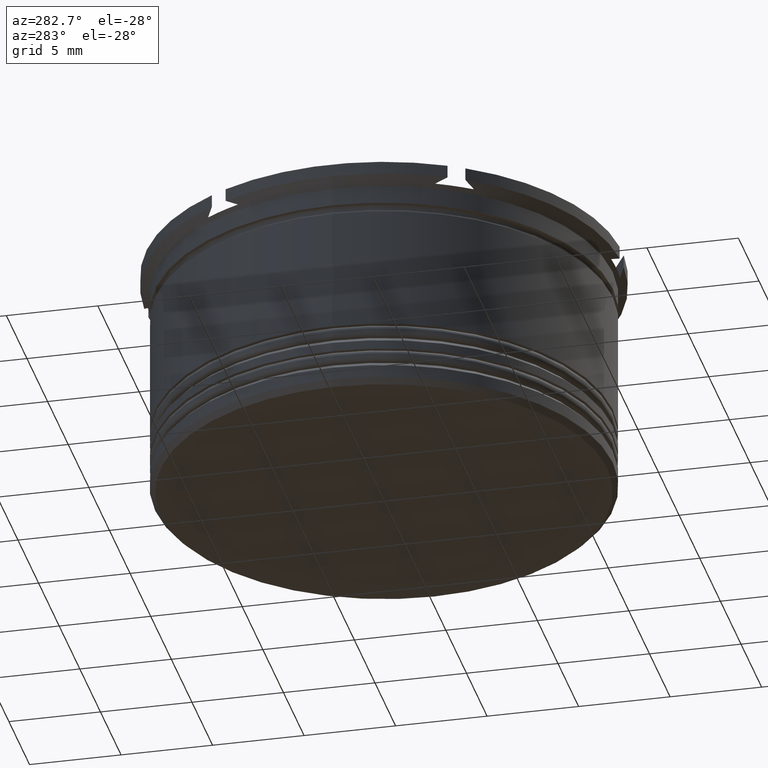
[diagram: clean part render]
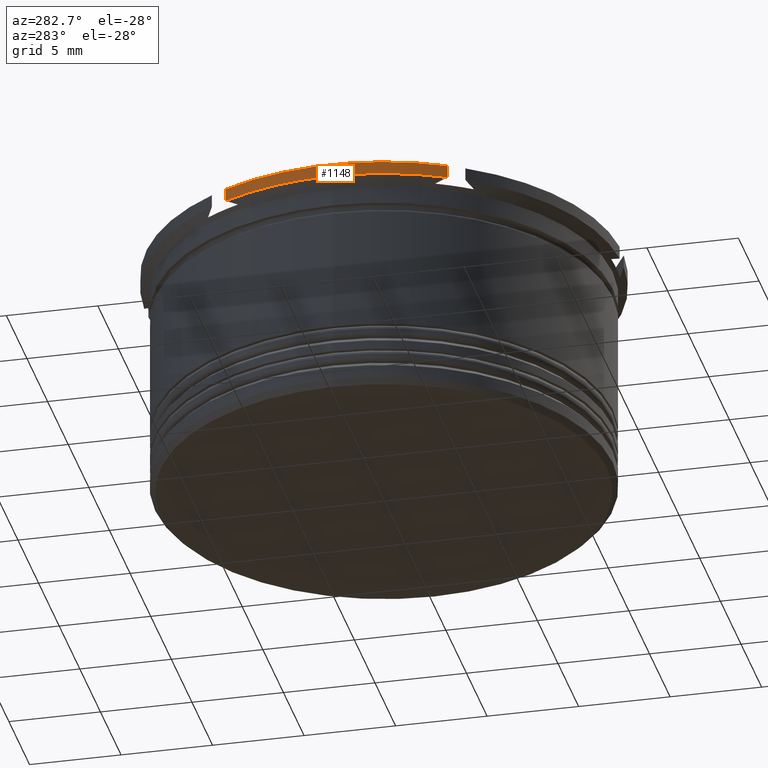
[diagram: same view with one face highlighted and labeled with its STEP entity id]
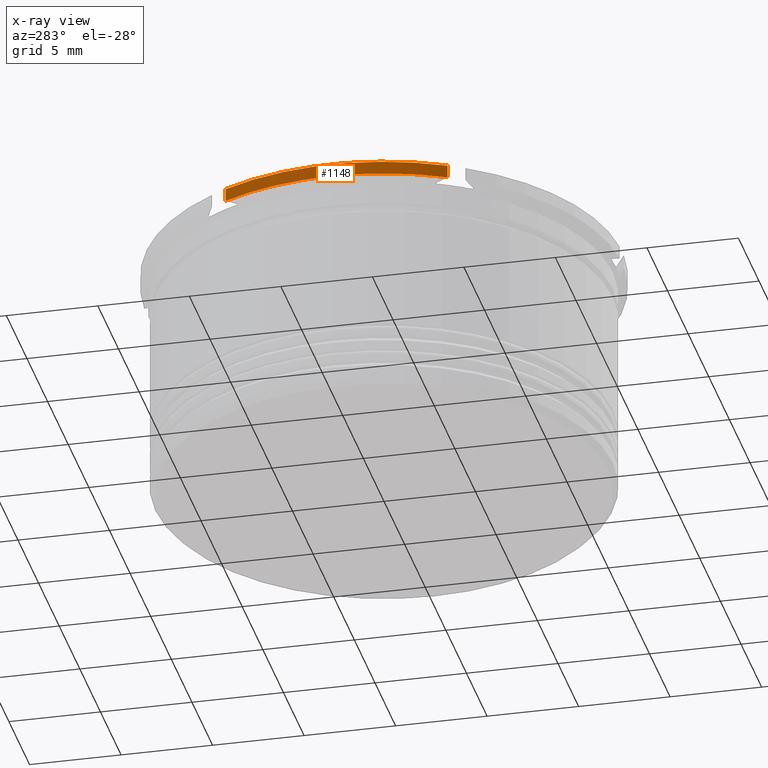
[diagram: x-ray of the same camera — body ghosted, the highlighted face saturated]
A machine part, auxiliary view. The second image highlights one B-rep face of the part: STEP entity #1148.
The next image is the same camera in x-ray: the body ghosted, the highlighted face saturated — about 0% of this face is hidden behind the body in this view.
In plain terms, the highlighted cylindrical surface (partial cylindrical patch) has radius 13 mm, axis along (-0, -0, 1).
Its self-contained STEP definition (entity closure, byte-faithful):
#3 = LINE ( 'NONE', #1488, #1124 ) ;
#55 = CARTESIAN_POINT ( 'NONE',  ( 0.000000000000000000, 0.000000000000000000, 0.000000000000000000 ) ) ;
#118 = CARTESIAN_POINT ( 'NONE',  ( -11.50000000000000000, -6.062177826491065957, 0.000000000000000000 ) ) ;
#148 = VERTEX_POINT ( 'NONE', #282 ) ;
#153 = EDGE_CURVE ( 'NONE', #268, #606, #272, .T. ) ;
#244 = ORIENTED_EDGE ( 'NONE', *, *, #1650, .F. ) ;
#268 = VERTEX_POINT ( 'NONE', #1386 ) ;
#271 = ORIENTED_EDGE ( 'NONE', *, *, #1122, .F. ) ;
#272 = LINE ( 'NONE', #118, #1339 ) ;
#282 = CARTESIAN_POINT ( 'NONE',  ( -12.99999999999999822, 1.592040838891558898E-15, -0.7000000000000018430 ) ) ;
#352 = VERTEX_POINT ( 'NONE', #2134 ) ;
#456 = CIRCLE ( 'NONE', #801, 12.99999999999999822 ) ;
#581 = CIRCLE ( 'NONE', #1277, 12.99999999999999822 ) ;
#606 = VERTEX_POINT ( 'NONE', #1544 ) ;
#689 = VERTEX_POINT ( 'NONE', #1937 ) ;
#692 = CARTESIAN_POINT ( 'NONE',  ( 0.000000000000000000, 0.000000000000000000, 0.000000000000000000 ) ) ;
#801 = AXIS2_PLACEMENT_3D ( 'NONE', #692, #1806, #1434 ) ;
#810 = ORIENTED_EDGE ( 'NONE', *, *, #2327, .T. ) ;
#840 = ORIENTED_EDGE ( 'NONE', *, *, #1928, .T. ) ;
#947 = DIRECTION ( 'NONE',  ( -0.000000000000000000, -0.000000000000000000, 1.000000000000000000 ) ) ;
#1032 = DIRECTION ( 'NONE',  ( 0.000000000000000000, 0.000000000000000000, -1.000000000000000000 ) ) ;
#1063 = EDGE_LOOP ( 'NONE', ( #1090, #244, #271, #810, #840 ) ) ;
#1090 = ORIENTED_EDGE ( 'NONE', *, *, #153, .F. ) ;
#1122 = EDGE_CURVE ( 'NONE', #352, #689, #3, .T. ) ;
#1124 = VECTOR ( 'NONE', #2226, 1000.000000000000000 ) ;
#1148 = ADVANCED_FACE ( 'NONE', ( #1685 ), #1362, .T. ) ;
#1277 = AXIS2_PLACEMENT_3D ( 'NONE', #1853, #2239, #2059 ) ;
#1330 = DIRECTION ( 'NONE',  ( -0.000000000000000000, -0.000000000000000000, 1.000000000000000000 ) ) ;
#1339 = VECTOR ( 'NONE', #1032, 1000.000000000000000 ) ;
#1362 = CYLINDRICAL_SURFACE ( 'NONE', #1744, 12.99999999999999822 ) ;
#1386 = CARTESIAN_POINT ( 'NONE',  ( -11.50000000000000000, -6.062177826491065957, 0.000000000000000000 ) ) ;
#1434 = DIRECTION ( 'NONE',  ( 1.000000000000000000, 0.000000000000000000, 0.000000000000000000 ) ) ;
#1488 = CARTESIAN_POINT ( 'NONE',  ( -11.50000000000000000, 6.062177826491065957, 0.000000000000000000 ) ) ;
#1544 = CARTESIAN_POINT ( 'NONE',  ( -11.50000000000000000, -6.062177826491065957, -0.7000000000000016209 ) ) ;
#1596 = AXIS2_PLACEMENT_3D ( 'NONE', #1834, #947, #2157 ) ;
#1650 = EDGE_CURVE ( 'NONE', #689, #268, #456, .T. ) ;
#1685 = FACE_OUTER_BOUND ( 'NONE', #1063, .T. ) ;
#1744 = AXIS2_PLACEMENT_3D ( 'NONE', #55, #1330, #2246 ) ;
#1806 = DIRECTION ( 'NONE',  ( -0.000000000000000000, -0.000000000000000000, 1.000000000000000000 ) ) ;
#1834 = CARTESIAN_POINT ( 'NONE',  ( 0.000000000000000000, 0.000000000000000000, -0.7000000000000018430 ) ) ;
#1853 = CARTESIAN_POINT ( 'NONE',  ( 0.000000000000000000, 0.000000000000000000, -0.7000000000000018430 ) ) ;
#1928 = EDGE_CURVE ( 'NONE', #148, #606, #2106, .T. ) ;
#1937 = CARTESIAN_POINT ( 'NONE',  ( -11.50000000000000000, 6.062177826491065957, 0.000000000000000000 ) ) ;
#2059 = DIRECTION ( 'NONE',  ( -1.000000000000000000, 2.664535259100375697E-15, 0.000000000000000000 ) ) ;
#2106 = CIRCLE ( 'NONE', #1596, 12.99999999999999822 ) ;
#2134 = CARTESIAN_POINT ( 'NONE',  ( -11.50000000000000000, 6.062177826491065957, -0.7000000000000021760 ) ) ;
#2157 = DIRECTION ( 'NONE',  ( -1.000000000000000000, 0.000000000000000000, 0.000000000000000000 ) ) ;
#2226 = DIRECTION ( 'NONE',  ( -0.000000000000000000, -0.000000000000000000, 1.000000000000000000 ) ) ;
#2239 = DIRECTION ( 'NONE',  ( -0.000000000000000000, -0.000000000000000000, 1.000000000000000000 ) ) ;
#2246 = DIRECTION ( 'NONE',  ( 1.000000000000000000, 0.000000000000000000, 0.000000000000000000 ) ) ;
#2327 = EDGE_CURVE ( 'NONE', #352, #148, #581, .T. ) ;